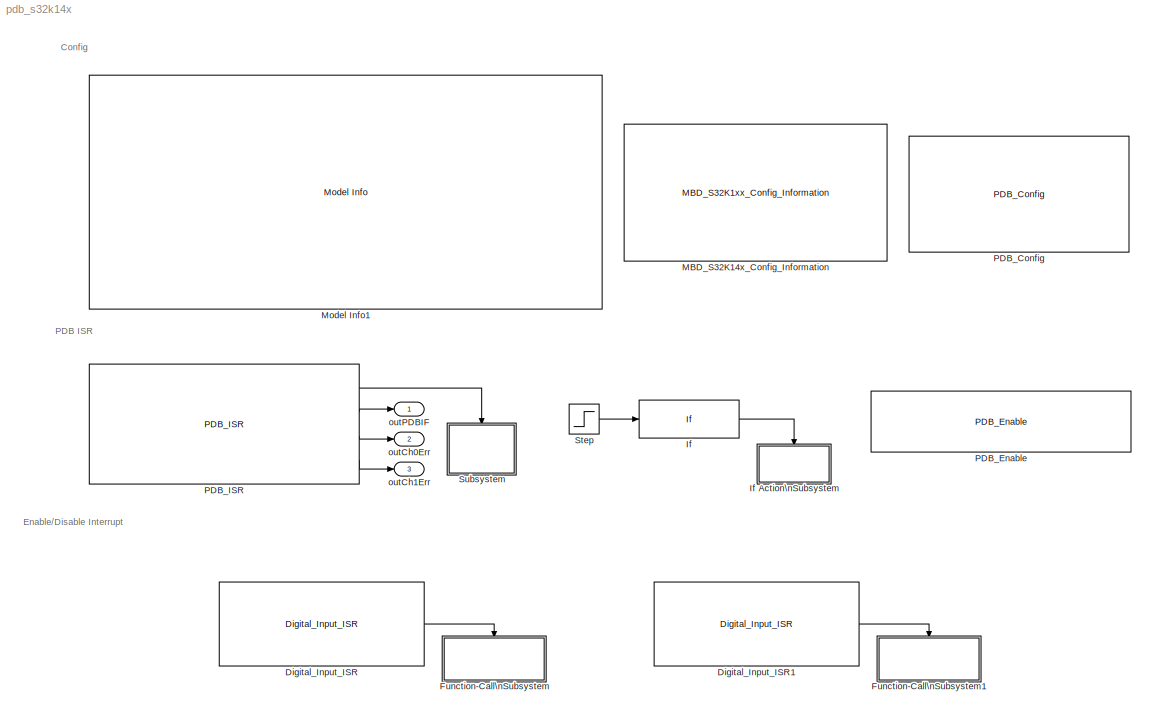
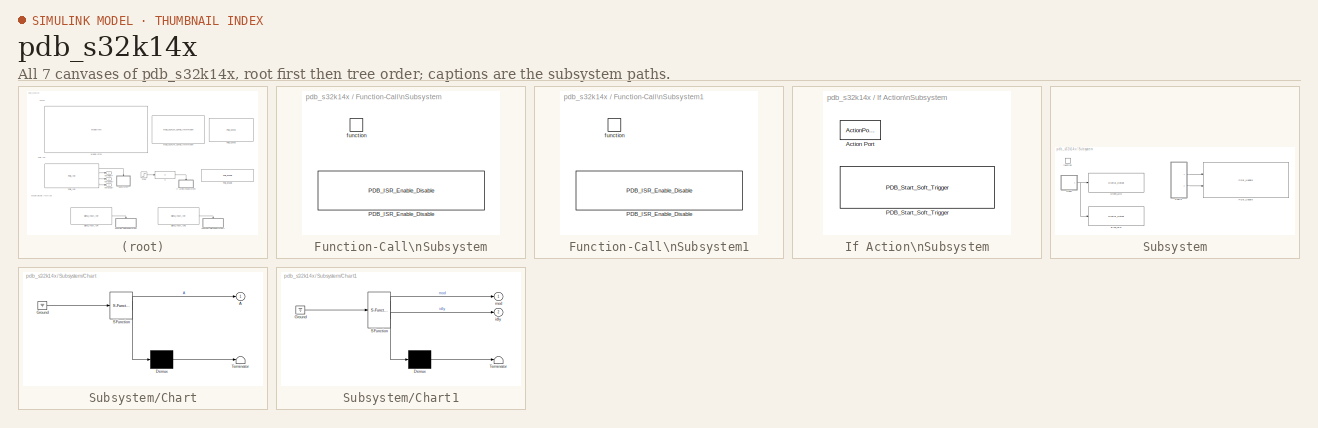
[diagram: thumbnail index - all 7 canvases of the model, root first then tree order]
MODEL pdb_s32k14x
KIND model
CONFIG InitFcn = mbd_s32k_consistency_checks(bdroot(gcs));
BLOCK [Reference] Digital_Input_ISR  REF=mbd_s32k1xx_ec_toolbox/GPIO Blocks/Digital_Input_ISR
  Ports = [0, 1]
  SID = 1
  SourceBlock = mbd_s32k1xx_ec_toolbox/GPIO Blocks/Digital_Input_ISR
  SourceType = gpi_s32k_isr
  gpio_pin = PTC12: [PTC12 | Port C I/O]
  irqc = when logic 1
  prio = 15
BLOCK [Reference] Digital_Input_ISR1  REF=mbd_s32k1xx_ec_toolbox/GPIO Blocks/Digital_Input_ISR
  Ports = [0, 1]
  SID = 2
  SourceBlock = mbd_s32k1xx_ec_toolbox/GPIO Blocks/Digital_Input_ISR
  SourceType = gpi_s32k_isr
  gpio_pin = PTC13: [PTC13 | Port C I/O]
  irqc = when logic 1
  prio = 15
BLOCK [SubSystem] Function-Call\nSubsystem
  Ports = [0, 0, 0, 1]
  RTWSystemCode = Inline
  RequestExecContextInheritance = off
  SID = 3
  TreatAsAtomicUnit = on
  Variant = off
BLOCK [Reference] Function-Call\nSubsystem/PDB_ISR_Enable_Disable  REF=mbd_s32k1xx_ec_toolbox/Motor Control Blocks/PDB Blocks/PDB_ISR_Enable_Disable
  Ports = []
  Priority = 4
  SID = 5
  SourceBlock = mbd_s32k1xx_ec_toolbox/Motor Control Blocks/PDB Blocks/PDB_ISR_Enable_Disable
  SourceType = pdb_s32k_isr_control_block
  pdbModule = 0
  regScPdbeie = off
  regScPdbie = off
BLOCK [TriggerPort] Function-Call\nSubsystem/function
  Ports = []
  SID = 4
  StatesWhenEnabling = held
  TriggerType = function-call
  VariantControl = Variant
BLOCK [SubSystem] Function-Call\nSubsystem1
  Ports = [0, 0, 0, 1]
  RTWSystemCode = Inline
  RequestExecContextInheritance = off
  SID = 6
  TreatAsAtomicUnit = on
  Variant = off
BLOCK [Reference] Function-Call\nSubsystem1/PDB_ISR_Enable_Disable  REF=mbd_s32k1xx_ec_toolbox/Motor Control Blocks/PDB Blocks/PDB_ISR_Enable_Disable
  Ports = []
  Priority = 4
  SID = 8
  SourceBlock = mbd_s32k1xx_ec_toolbox/Motor Control Blocks/PDB Blocks/PDB_ISR_Enable_Disable
  SourceType = pdb_s32k_isr_control_block
  pdbModule = 0
  regScPdbeie = off
  regScPdbie = on
BLOCK [TriggerPort] Function-Call\nSubsystem1/function
  Ports = []
  SID = 7
  StatesWhenEnabling = held
  TriggerType = function-call
  VariantControl = Variant
BLOCK [If] If
  IfExpression = u1 == 1
  Ports = [1, 1]
  SID = 9
  ShowElse = off
BLOCK [SubSystem] If Action\nSubsystem
  Ports = [0, 0, 0, 0, 0, 0, 0, 1]
  RequestExecContextInheritance = off
  SID = 10
  TreatAsAtomicUnit = on
  Variant = off
BLOCK [ActionPort] If Action\nSubsystem/Action Port
  SID = 11
BLOCK [Reference] If Action\nSubsystem/PDB_Start_Soft_Trigger  REF=mbd_s32k1xx_ec_toolbox/Motor Control Blocks/PDB Blocks/PDB_Start_Soft_Trigger
  Ports = []
  Priority = 9
  SID = 12
  SourceBlock = mbd_s32k1xx_ec_toolbox/Motor Control Blocks/PDB Blocks/PDB_Start_Soft_Trigger
  SourceType = pdb_s32k_start_soft_trigger_block
  pdbModule = 0
BLOCK [Reference] MBD_S32K14x_Config_Information  REF=mbd_s32k1xx_ec_toolbox/MBD_S32K1xx_Config_Information
  ADC_PcrCheckEnDis = on
  AMMCLIB_PcrCheckEnDis = on
  CMP_PcrCheckEnDis = on
  CSEc_PcrCheckEnDis = on
  ConfigParams_PcrCheckEnDis = on
  FM_PcrCheckEnDis = on
  FTM_Dual_Edge_Inputs_PcrCheckEnDis = on
  FTM_Hall_Sensor_Inputs_PcrCheckEnDis = on
  FTM_Input_Edge_Inputs_PcrCheckEnDis = on
  FTM_PWM_PcrCheckEnDis = on
  FTM_Quadrature_Inputs_PcrCheckEnDis = on
  FlexCAN_PcrCheckEnDis = on
  FlexIO_PcrCheckEnDis = on
  GPIO_InputPcrCheckEnDis = on
  GPIO_OutputPcrCheckEnDis = on
  LIN_PcrCheckEnDis = on
  LPI2C_PcrCheckEnDis = on
  LPSPI_PcrCheckEnDis = on
  LPTMR_PcrCheckEnDis = on
  LPUART_PcrCheckEnDis = on
  ModelRef_PcrCheckEnDis = on
  PDB0_PcrCheckEnDis = on
  PIT_PcrCheckEnDis = on
  Ports = []
  Profile_PcrCheckEnDis = on
  RTC_PcrCheckEnDis = on
  SBC_PcrCheckEnDis = on
  SID = 13
  SourceBlock = mbd_s32k1xx_ec_toolbox/MBD_S32K1xx_Config_Information
  SourceType = MBDTBX_EC_S32K
  WDOG_PcrCheckEnDis = on
  config_params = []
  disp_str = Target : S32K144-64KB_SRAM\nPackage : 100-pin\nSystem clock : 80 MHz\nXTAL clock : External 8 MHz\nCompiler : GCC\nTarget Type : FLASH\nDownload Code after build : (OpenSDA: F)\nStep Tick Interrupt Priority : 15
  ds_import_enable = on
  eDMA_PcrCheckEnDis = on
  gcc_target_assemble_opts = -mcpu=cortex-m4 -mthumb -mfloat-abi=hard -mfpu=fpv4-sp-d16 -g
  gcc_target_compile_opts = -mcpu=cortex-m4 -mthumb -mfloat-abi=hard -mfpu=fpv4-sp-d16 -O1 -g -gstrict-dwarf
  gcc_target_default_lcf = on
  gcc_target_link_opts = -mcpu=cortex-m4 -mthumb -mfloat-abi=hard -mfpu=fpv4-sp-d16
  gcc_target_user_lcf = S32K144_64_flash.ld
  ghs_target_assemble_opts = -cpu=cortexm4f -fpu=vfpv4_d16
  ghs_target_compile_opts = -cpu=cortexm4f -thumb -DARM_MATH_CM4 -fpu=vfpv4_d16 -fsingle -Ogeneral -Wundef -Wimplicit-int -Wshadow -Wtrigraphs --no_commons --gnu_asm -gnu99 -gdwarf-2 -G
  ghs_target_default_lcf = off
  ghs_target_link_opts = -cpu=cortexm4f -thumb -fpu=vfpv4_d16
  ghs_target_user_lcf = S32K144_64_flash.ld
  iar_target_assemble_opts = --cpu Cortex-M4F --thumb --fpu VFPv4_sp
  iar_target_compile_opts = --cpu=Cortex-M4F --thumb --fpu=VFPv4_sp -Ol -e --debug --dlib_config normal
  iar_target_default_lcf = off
  iar_target_link_opts = --no_exceptions --vfe --inline
  iar_target_user_lcf = S32K144_64_flash.icf
  mbdt_ver = 0
  mcu_steptick_prio = 15
  mcu_steptick_timer = LPIT Channel 0
  mcu_system_clock_freq = 80
  mcu_target_name = S32K144
  mcu_target_package = 100-LQFP
  mcu_target_sram_size = 64KB
  mcu_xtal_freq = External 8
  pil_download_enable = off
  pil_download_rate = 57600
  pil_opensda_drive = Custom
  pil_opensda_drive_custom = D
  pil_uart_instance = 0
  pil_uart_rx = PTA2: [LPUART0_RX | Receive]
  pil_uart_tx = PTA3: [LPUART0_TX | Transmit]
  rbl_com_port = Custom
  rbl_com_port_custom = COM1
  rbl_download_enable = on
  rbl_download_interface = OpenSDA
  rbl_restart_request = off
  rbl_start_delay = 5000000
  target_compiler = GCC
  target_memory = FLASH
BLOCK [Reference] Model Info1  REF=simulink/Model-Wide\nUtilities/Model Info
  DisplayStringWithTags = Model Name: %<ModelName>\n\nDescription: %<Description>
  Frame = off
  HorizontalTextAlignment = Left
  LeftAlignmentValue = 0.02
  MaskDisplayString = Model Name: pdb_s32k14x\\n\\nDescription: This sample shows how to use Programmable Delay Block (PDB) with interrupt generation \\nfor the S32K144 MCUs. The software trigger is selected as the trigger input source. \\nIt is called only once to reset and restart the PDB counter. PDB operates in continuous mode. \\nThe counter is rolled over to zero again when the count reaches the value\\nspecified...<+640ch>
  Ports = []
  SID = 32
  SourceBlock = simulink/Model-Wide\nUtilities/Model Info
  SourceProductBaseCode = SL
  SourceProductName = Simulink
  SourceType = CMBlock
BLOCK [Reference] PDB_Config  REF=mbd_s32k1xx_ec_toolbox/Motor Control Blocks/PDB Blocks/PDB_Config
  Ports = []
  Priority = 1
  SID = 29
  SourceBlock = mbd_s32k1xx_ec_toolbox/Motor Control Blocks/PDB Blocks/PDB_Config
  SourceType = pdb_s32k_config_block
  enable_pdb_init = off
  pdbModule = 0
  regCh0C1Bb0 = off
  regCh0C1Bb1 = off
  regCh0C1Bb2 = off
  regCh0C1Bb3 = off
  regCh0C1Bb4 = off
  regCh0C1Bb5 = off
  regCh0C1Bb6 = off
  regCh0C1Bb7 = off
  regCh0C1En0 = off
  regCh0C1En1 = off
  regCh0C1En2 = off
  regCh0C1En3 = off
  regCh0C1En4 = off
  regCh0C1En5 = off
  regCh0C1En6 = off
  regCh0C1En7 = off
  regCh0C1Tos0 = Pre-trigger is in delay mode
  regCh0C1Tos1 = Pre-trigger is in delay mode
  regCh0C1Tos2 = Pre-trigger is in delay mode
  regCh0C1Tos3 = Pre-trigger is in delay mode
  regCh0C1Tos4 = Pre-trigger is in delay mode
  regCh0C1Tos5 = Pre-trigger is in delay mode
  regCh0C1Tos6 = Pre-trigger is in delay mode
  regCh0C1Tos7 = Pre-trigger is in delay mode
  regCh0DlyDly0 = 0
  regCh0DlyDly1 = 0
  regCh0DlyDly2 = 0
  regCh0DlyDly3 = 0
  regCh0DlyDly4 = 0
  regCh0DlyDly5 = 0
  regCh0DlyDly6 = 0
  regCh0DlyDly7 = 0
  regCh1C1Bb0 = off
  regCh1C1Bb1 = off
  regCh1C1Bb2 = off
  regCh1C1Bb3 = off
  regCh1C1Bb4 = off
  regCh1C1Bb5 = off
  regCh1C1Bb6 = off
  regCh1C1Bb7 = off
  regCh1C1En0 = off
  regCh1C1En1 = off
  regCh1C1En2 = off
  regCh1C1En3 = off
  regCh1C1En4 = off
  regCh1C1En5 = off
  regCh1C1En6 = off
  regCh1C1En7 = off
  regCh1C1Tos0 = Pre-trigger is in delay mode
  regCh1C1Tos1 = Pre-trigger is in delay mode
  regCh1C1Tos2 = Pre-trigger is in delay mode
  regCh1C1Tos3 = Pre-trigger is in delay mode
  regCh1C1Tos4 = Pre-trigger is in delay mode
  regCh1C1Tos5 = Pre-trigger is in delay mode
  regCh1C1Tos6 = Pre-trigger is in delay mode
  regCh1C1Tos7 = Pre-trigger is in delay mode
  regCh1DlyDly0 = 0
  regCh1DlyDly1 = 0
  regCh1DlyDly2 = 0
  regCh1DlyDly3 = 0
  regCh1DlyDly4 = 0
  regCh1DlyDly5 = 0
  regCh1DlyDly6 = 0
  regCh1DlyDly7 = 0
  regModModulus = 1200
  regPo0DlyDly1 = 0
  regPo0DlyDly2 = 0
  regPoenPoen0 = off
  regScCont = Continuous
  regScMult = 40
  regScPrescaler = 128
  regScTrgsel = Software
  show_adv_opts = on
  trgMuxSel = FTM2 External Trigger
  trgMuxSelPin = PTB5: [TRGMUX_IN0 | Trigger Mux Input]
BLOCK [Reference] PDB_Enable  REF=mbd_s32k1xx_ec_toolbox/Motor Control Blocks/PDB Blocks/PDB_Enable
  Ports = []
  Priority = 2
  SID = 15
  SourceBlock = mbd_s32k1xx_ec_toolbox/Motor Control Blocks/PDB Blocks/PDB_Enable
  SourceType = pdb_s32k_enable_block
  pdbAction = Enable
  pdbModule = 0
BLOCK [Reference] PDB_ISR  REF=mbd_s32k1xx_ec_toolbox/Motor Control Blocks/PDB Blocks/PDB_ISR
  Ports = [0, 4]
  Priority = 2
  SID = 16
  SourceBlock = mbd_s32k1xx_ec_toolbox/Motor Control Blocks/PDB Blocks/PDB_ISR
  SourceType = pdb_s32k_isr_block
  pdbModule = 0
  prioInterrupt = 15
  regIdlyIdly = 1200
  regScPdbeie = off
  regScPdbie = on
BLOCK [Step] Step
  After = 2
  Before = 1
  SID = 17
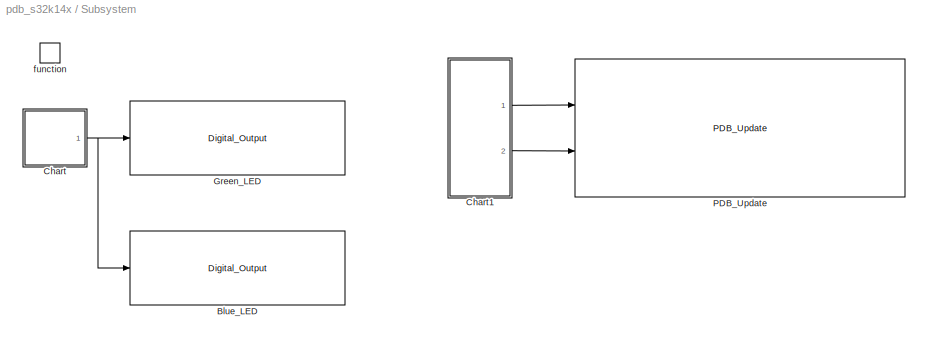
BLOCK [SubSystem] Subsystem
  Ports = [0, 0, 0, 1]
  RTWSystemCode = Nonreusable function
  RequestExecContextInheritance = off
  SID = 18
  TreatAsAtomicUnit = on
  Variant = off
BLOCK [Reference] Subsystem/Blue_LED  REF=mbd_s32k1xx_ec_toolbox/GPIO Blocks/Digital_Output
  Ports = [1]
  SID = 20
  SourceBlock = mbd_s32k1xx_ec_toolbox/GPIO Blocks/Digital_Output
  SourceType = gpio_s32k_output
  drive_strength = Low
  gpio_pin = PTD0: [PTD0 | Port D I/O]
  init_val = Low
BLOCK [SubSystem] Subsystem/Chart
  ErrorFcn = Stateflow.Translate.translate
  PermitHierarchicalResolution = ExplicitOnly
  Ports = [0, 1]
  RequestExecContextInheritance = off
  SFBlockType = Chart
  SID = 21
  TreatAsAtomicUnit = on
  Variant = off
BLOCK [Outport] Subsystem/Chart/ A
  IconDisplay = Port number
  SID = 21::6
BLOCK [Demux] Subsystem/Chart/ Demux 
  Outputs = 1
  Ports = [1, 1]
  SID = 21::36
BLOCK [Ground] Subsystem/Chart/ Ground 
  SID = 21::38
BLOCK [S-Function] Subsystem/Chart/ SFunction 
  EnableBusSupport = off
  FunctionName = sf_sfun
  PortCounts = [1 2]
  Ports = [1, 2]
  SFcnIsStateOwnerBlock = off
  SFunctionDeploymentMode = off
  SID = 21::35
  Tag = Stateflow S-Function pdb_s32k14x 2
BLOCK [Terminator] Subsystem/Chart/ Terminator 
  SID = 21::37
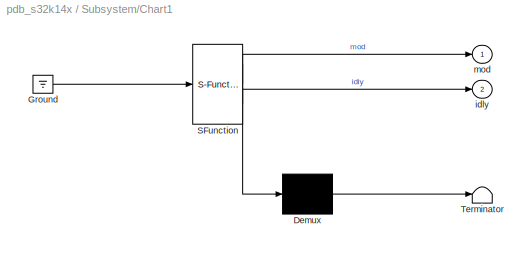
BLOCK [SubSystem] Subsystem/Chart1
  ErrorFcn = Stateflow.Translate.translate
  PermitHierarchicalResolution = ExplicitOnly
  Ports = [0, 2]
  Priority = 0
  RequestExecContextInheritance = off
  SFBlockType = Chart
  SID = 22
  TreatAsAtomicUnit = on
  Variant = off
BLOCK [Demux] Subsystem/Chart1/ Demux 
  Outputs = 1
  Ports = [1, 1]
  SID = 22::69
BLOCK [Ground] Subsystem/Chart1/ Ground 
  SID = 22::71
BLOCK [S-Function] Subsystem/Chart1/ SFunction 
  EnableBusSupport = off
  FunctionName = sf_sfun
  PortCounts = [1 3]
  Ports = [1, 3]
  SFcnIsStateOwnerBlock = off
  SFunctionDeploymentMode = off
  SID = 22::68
  Tag = Stateflow S-Function pdb_s32k14x 3
BLOCK [Terminator] Subsystem/Chart1/ Terminator 
  SID = 22::70
BLOCK [Outport] Subsystem/Chart1/idly
  IconDisplay = Port number
  Port = 2
  SID = 22::7
BLOCK [Outport] Subsystem/Chart1/mod
  IconDisplay = Port number
  SID = 22::6
BLOCK [Reference] Subsystem/Green_LED  REF=mbd_s32k1xx_ec_toolbox/GPIO Blocks/Digital_Output
  Ports = [1]
  SID = 23
  SourceBlock = mbd_s32k1xx_ec_toolbox/GPIO Blocks/Digital_Output
  SourceType = gpio_s32k_output
  drive_strength = Low
  gpio_pin = PTD16: [PTD16 | Port D I/O]
  init_val = Low
BLOCK [Reference] Subsystem/PDB_Update  REF=mbd_s32k1xx_ec_toolbox/Motor Control Blocks/PDB Blocks/PDB_Update
  Ports = [2]
  Priority = 8
  SID = 24
  SourceBlock = mbd_s32k1xx_ec_toolbox/Motor Control Blocks/PDB Blocks/PDB_Update
  SourceType = pdb_s32k_update_block
  inputCh0DlyEn = off
  inputCh1DlyEn = off
  inputIdlyEn = on
  inputModEn = on
  inputPo0DlyEn = off
  pdbModule = 0
  regScLdmod = Immediately
BLOCK [TriggerPort] Subsystem/function
  Ports = []
  SID = 19
  StatesWhenEnabling = held
  TriggerType = function-call
  VariantControl = Variant
BLOCK [Outport] outCh0Err
  IconDisplay = Port number
  Port = 2
  SID = 26
BLOCK [Outport] outCh1Err
  IconDisplay = Port number
  Port = 3
  SID = 27
BLOCK [Outport] outPDBIF
  IconDisplay = Port number
  SID = 25
ANNOTATION (root): Config\n
ANNOTATION (root): Enable/Disable Interrupt
ANNOTATION (root): PDB ISR
LINE Digital_Input_ISR1:1 -> Function-Call\nSubsystem1:trigger
LINE Digital_Input_ISR:1 -> Function-Call\nSubsystem:trigger
LINE If:1 -> If Action\nSubsystem:ifaction
LINE PDB_ISR:1 -> Subsystem:trigger
LINE PDB_ISR:2 -> outPDBIF:1
LINE PDB_ISR:3 -> outCh0Err:1
LINE PDB_ISR:4 -> outCh1Err:1
LINE Step:1 -> If:1
LINE Subsystem/Chart/ Demux :1 -> Subsystem/Chart/ Terminator :1
LINE Subsystem/Chart/ Ground :1 -> Subsystem/Chart/ SFunction :1
LINE Subsystem/Chart/ SFunction :1 -> Subsystem/Chart/ Demux :1
LINE Subsystem/Chart/ SFunction :2 -> Subsystem/Chart/ A:1
LINE Subsystem/Chart1/ Demux :1 -> Subsystem/Chart1/ Terminator :1
LINE Subsystem/Chart1/ Ground :1 -> Subsystem/Chart1/ SFunction :1
LINE Subsystem/Chart1/ SFunction :1 -> Subsystem/Chart1/ Demux :1
LINE Subsystem/Chart1/ SFunction :2 -> Subsystem/Chart1/mod:1
LINE Subsystem/Chart1/ SFunction :3 -> Subsystem/Chart1/idly:1
LINE Subsystem/Chart1:1 -> Subsystem/PDB_Update:1
LINE Subsystem/Chart1:2 -> Subsystem/PDB_Update:2
NET Subsystem/Chart:1 -> Subsystem/Blue_LED:1, Subsystem/Green_LED:1
note: NET lines group one-source signal fan-out (src -> all destinations, sorted); 1:1 wires keep LINE
CHART Subsystem/Chart states=2 transitions=3
  STATE_LABEL 'A'
  STATE_LABEL 'A1'
CHART Subsystem/Chart1 states=2 transitions=3
  STATE_LABEL 'A\\ndu:\\nmod = 1200;\\nidly = 1200;\\ncntr=cntr+1;'
  STATE_LABEL 'A1\\ndu:\\nmod = 5000;\\nidly = 5000;\\ncntr=cntr+1;'
